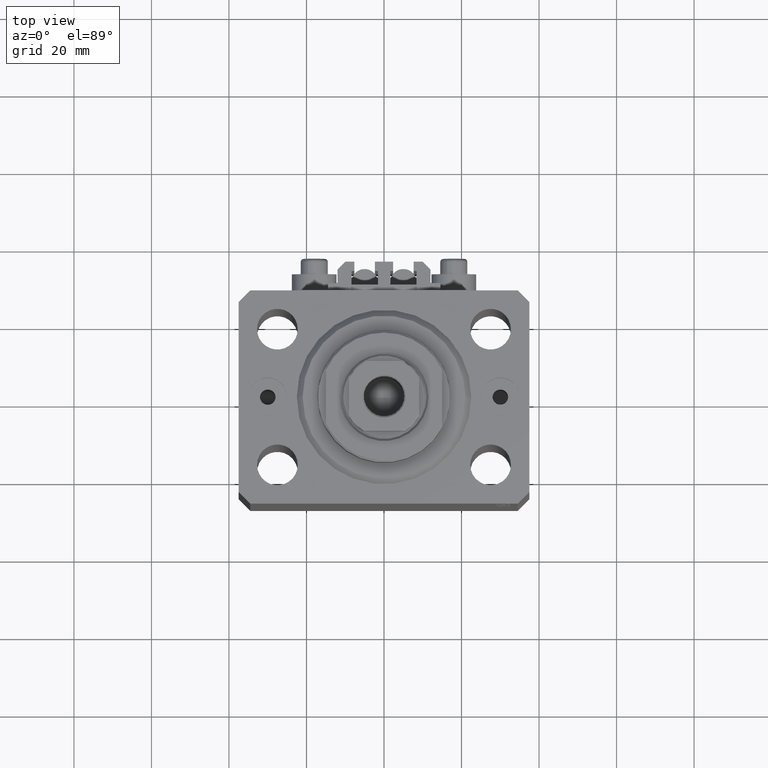
[diagram: clean part render]
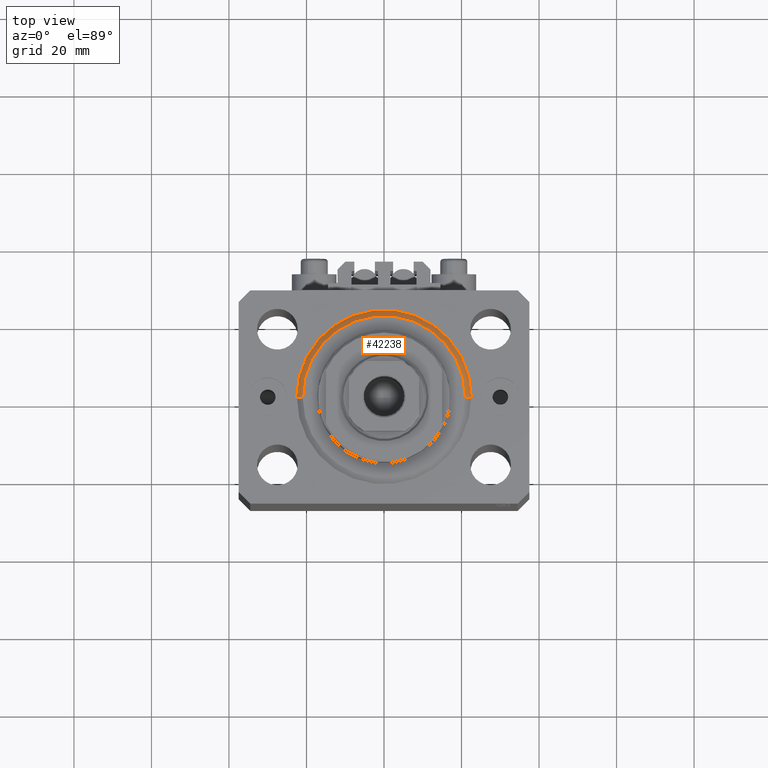
[diagram: same view with one face highlighted and labeled with its STEP entity id]
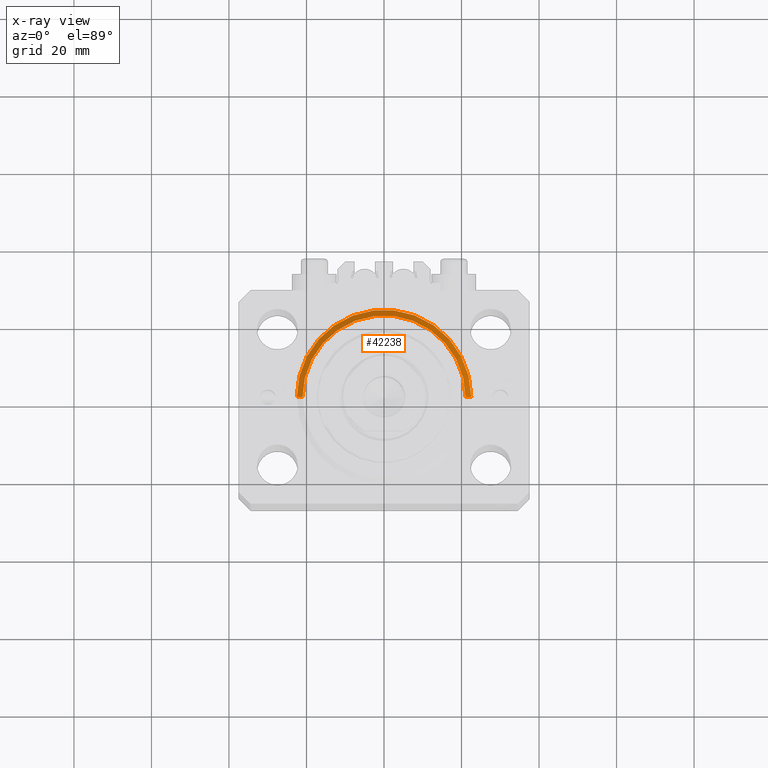
[diagram: x-ray of the same camera — body ghosted, the highlighted face saturated]
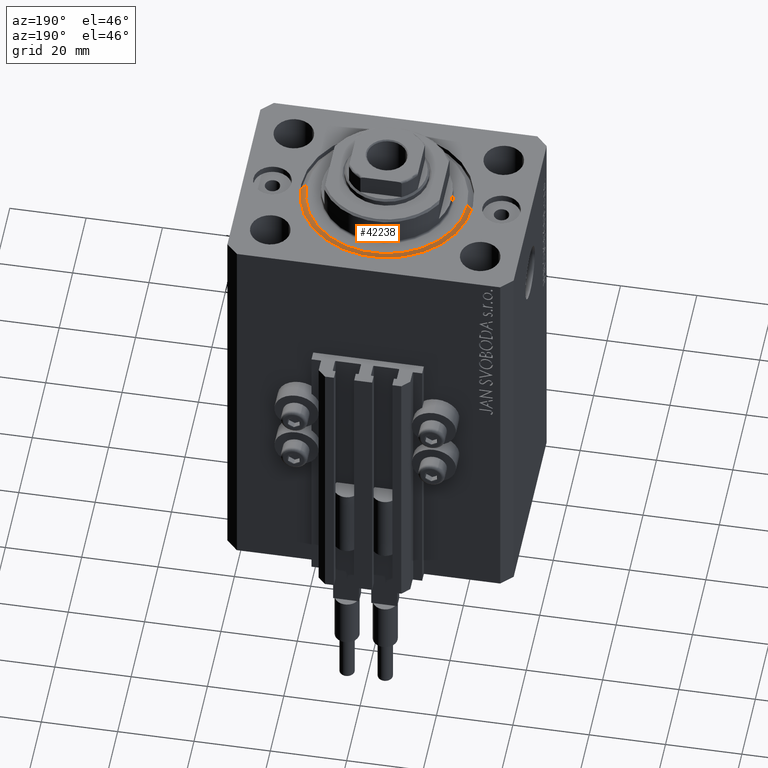
[diagram: same view with one face highlighted and labeled with its STEP entity id]
A machine part, top view. The second image highlights one B-rep face of the part: STEP entity #42238.
The next image is the same camera in x-ray: the body ghosted, the highlighted face saturated — about 0% of this face is hidden behind the body in this view.
A second angle (auxiliary view) of the same face is appended — the face is thin or edge-on in the first view.
In plain terms, the highlighted conical surface has half-angle 45 deg.
Its self-contained STEP definition (entity closure, byte-faithful):
#695 = DIRECTION ( 'NONE',  ( 1.000000000000000000, 0.000000000000000000, 0.000000000000000000 ) ) ;
#1176 = CARTESIAN_POINT ( 'NONE',  ( 0.000000000000000000, 0.000000000000000000, 0.000000000000000000 ) ) ;
#5134 = EDGE_CURVE ( 'NONE', #45014, #14591, #18552, .T. ) ;
#5473 = CARTESIAN_POINT ( 'NONE',  ( 22.50000000000000355, 0.000000000000000000, 1.500000000000039524 ) ) ;
#9227 = CARTESIAN_POINT ( 'NONE',  ( 22.50000000000000355, 2.755455298081544383E-15, 1.500000000000039524 ) ) ;
#12150 = DIRECTION ( 'NONE',  ( 1.000000000000000000, 0.000000000000000000, 0.000000000000000000 ) ) ;
#13538 = DIRECTION ( 'NONE',  ( -0.000000000000000000, -0.000000000000000000, 1.000000000000000000 ) ) ;
#14591 = VERTEX_POINT ( 'NONE', #36066 ) ;
#14938 = EDGE_CURVE ( 'NONE', #34105, #14591, #41124, .T. ) ;
#16394 = VERTEX_POINT ( 'NONE', #24217 ) ;
#16625 = EDGE_CURVE ( 'NONE', #16394, #45014, #45321, .T. ) ;
#17382 = ORIENTED_EDGE ( 'NONE', *, *, #14938, .T. ) ;
#17662 = CARTESIAN_POINT ( 'NONE',  ( -20.99999999999995381, 2.663606788145490261E-15, 0.000000000000000000 ) ) ;
#17751 = AXIS2_PLACEMENT_3D ( 'NONE', #35401, #13538, #36106 ) ;
#18552 = CIRCLE ( 'NONE', #17751, 22.50000000000000355 ) ;
#19166 = ORIENTED_EDGE ( 'NONE', *, *, #5134, .F. ) ;
#19422 = AXIS2_PLACEMENT_3D ( 'NONE', #42050, #27460, #12150 ) ;
#19641 = VECTOR ( 'NONE', #23441, 1000.000000000000114 ) ;
#20181 = CONICAL_SURFACE ( 'NONE', #19422, 22.50000000000000355, 0.7853981633974517207 ) ;
#20406 = VECTOR ( 'NONE', #33820, 1000.000000000000114 ) ;
#22494 = CIRCLE ( 'NONE', #41912, 20.99999999999995381 ) ;
#22836 = ORIENTED_EDGE ( 'NONE', *, *, #42655, .F. ) ;
#23441 = DIRECTION ( 'NONE',  ( 0.7071067811865500152, 0.000000000000000000, 0.7071067811865451302 ) ) ;
#24217 = CARTESIAN_POINT ( 'NONE',  ( 20.99999999999995381, 0.000000000000000000, 0.000000000000000000 ) ) ;
#26742 = FACE_OUTER_BOUND ( 'NONE', #34407, .T. ) ;
#27460 = DIRECTION ( 'NONE',  ( -0.000000000000000000, -0.000000000000000000, 1.000000000000000000 ) ) ;
#30793 = DIRECTION ( 'NONE',  ( -0.000000000000000000, -0.000000000000000000, -1.000000000000000000 ) ) ;
#33820 = DIRECTION ( 'NONE',  ( -0.7071067811865500152, 8.659560562354962440E-17, 0.7071067811865451302 ) ) ;
#34105 = VERTEX_POINT ( 'NONE', #17662 ) ;
#34407 = EDGE_LOOP ( 'NONE', ( #22836, #17382, #19166, #42119 ) ) ;
#35401 = CARTESIAN_POINT ( 'NONE',  ( 0.000000000000000000, 0.000000000000000000, 1.500000000000039524 ) ) ;
#36066 = CARTESIAN_POINT ( 'NONE',  ( -22.50000000000000355, 0.000000000000000000, 1.500000000000039524 ) ) ;
#36106 = DIRECTION ( 'NONE',  ( 1.000000000000000000, 0.000000000000000000, 0.000000000000000000 ) ) ;
#37474 = CARTESIAN_POINT ( 'NONE',  ( -22.50000000000000355, 2.755455298081545172E-15, 1.500000000000039524 ) ) ;
#41124 = LINE ( 'NONE', #37474, #20406 ) ;
#41912 = AXIS2_PLACEMENT_3D ( 'NONE', #1176, #30793, #695 ) ;
#42050 = CARTESIAN_POINT ( 'NONE',  ( 0.000000000000000000, 0.000000000000000000, 1.500000000000039524 ) ) ;
#42119 = ORIENTED_EDGE ( 'NONE', *, *, #16625, .F. ) ;
#42238 = ADVANCED_FACE ( 'NONE', ( #26742 ), #20181, .T. ) ;
#42655 = EDGE_CURVE ( 'NONE', #34105, #16394, #22494, .T. ) ;
#45014 = VERTEX_POINT ( 'NONE', #9227 ) ;
#45321 = LINE ( 'NONE', #5473, #19641 ) ;